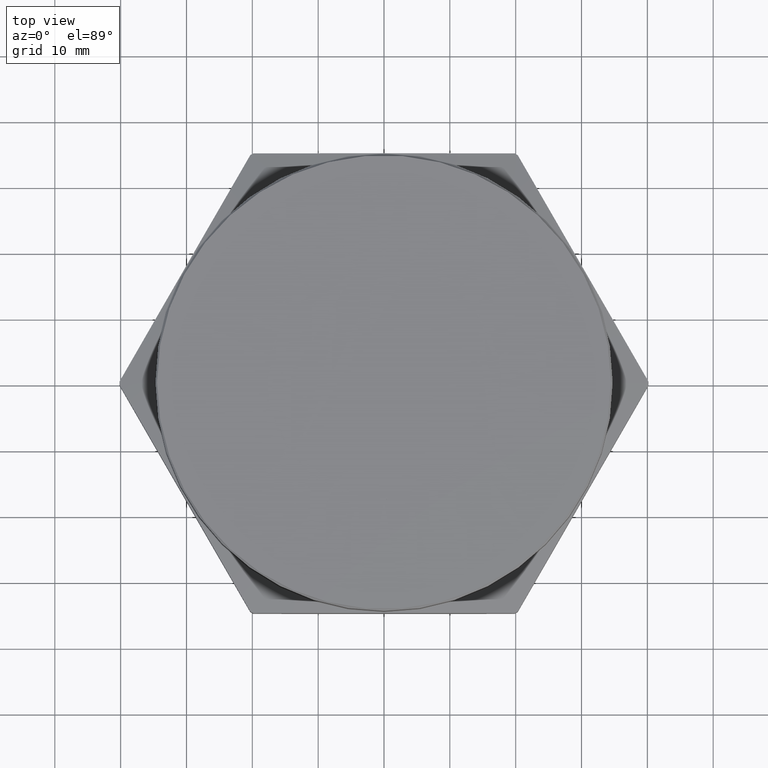
[diagram: clean part render]
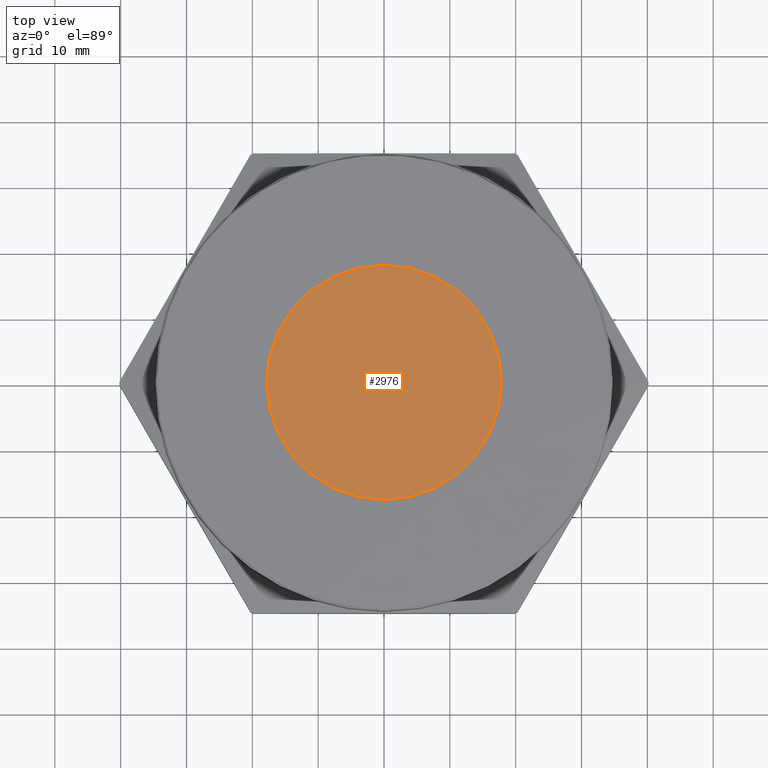
[diagram: same view with one face highlighted and labeled with its STEP entity id]
A machine part, top view. The second image highlights one B-rep face of the part: STEP entity #2976.
In plain terms, the highlighted planar face has unit normal (0, 0, 1).
Its self-contained STEP definition (entity closure, byte-faithful):
#6 = VERTEX_POINT ( 'NONE', #3226 ) ;
#148 = VERTEX_POINT ( 'NONE', #3282 ) ;
#229 = EDGE_LOOP ( 'NONE', ( #3034, #3035 ) ) ;
#442 = CIRCLE ( 'NONE', #1878, 0.7009999999999999600 ) ;
#446 = CIRCLE ( 'NONE', #1880, 0.7009999999999999600 ) ;
#518 = FACE_OUTER_BOUND ( 'NONE', #229, .T. ) ;
#788 = CARTESIAN_POINT ( 'NONE',  ( 0.0000000000000000000, 0.0000000000000000000, 0.6699999999999999300 ) ) ;
#789 = DIRECTION ( 'NONE',  ( 0.0000000000000000000, 0.0000000000000000000, 1.000000000000000000 ) ) ;
#790 = DIRECTION ( 'NONE',  ( 1.000000000000000000, 0.0000000000000000000, 0.0000000000000000000 ) ) ;
#794 = CARTESIAN_POINT ( 'NONE',  ( 0.0000000000000000000, 0.0000000000000000000, 0.6699999999999999300 ) ) ;
#795 = DIRECTION ( 'NONE',  ( 0.0000000000000000000, 0.0000000000000000000, 1.000000000000000000 ) ) ;
#796 = DIRECTION ( 'NONE',  ( 1.000000000000000000, 0.0000000000000000000, 0.0000000000000000000 ) ) ;
#1786 = PLANE ( 'NONE',  #1924 ) ;
#1788 = CARTESIAN_POINT ( 'NONE',  ( 0.0000000000000000000, 0.0000000000000000000, 0.6699999999999999300 ) ) ;
#1793 = DIRECTION ( 'NONE',  ( 0.0000000000000000000, 0.0000000000000000000, 1.000000000000000000 ) ) ;
#1794 = DIRECTION ( 'NONE',  ( 1.000000000000000000, 0.0000000000000000000, -0.0000000000000000000 ) ) ;
#1878 = AXIS2_PLACEMENT_3D ( 'NONE', #788, #789, #790 ) ;
#1880 = AXIS2_PLACEMENT_3D ( 'NONE', #794, #795, #796 ) ;
#1924 = AXIS2_PLACEMENT_3D ( 'NONE', #1788, #1793, #1794 ) ;
#2837 = EDGE_CURVE ( 'NONE', #6, #148, #442, .T. ) ;
#2840 = EDGE_CURVE ( 'NONE', #148, #6, #446, .T. ) ;
#2976 = ADVANCED_FACE ( 'NONE', ( #518 ), #1786, .T. ) ;
#3034 = ORIENTED_EDGE ( 'NONE', *, *, #2837, .T. ) ;
#3035 = ORIENTED_EDGE ( 'NONE', *, *, #2840, .T. ) ;
#3226 = CARTESIAN_POINT ( 'NONE',  ( 0.7009999999999999600, 0.0000000000000000000, 0.6699999999999999300 ) ) ;
#3282 = CARTESIAN_POINT ( 'NONE',  ( -0.7009999999999999600, 8.584774062022943000E-017, 0.6699999999999999300 ) ) ;